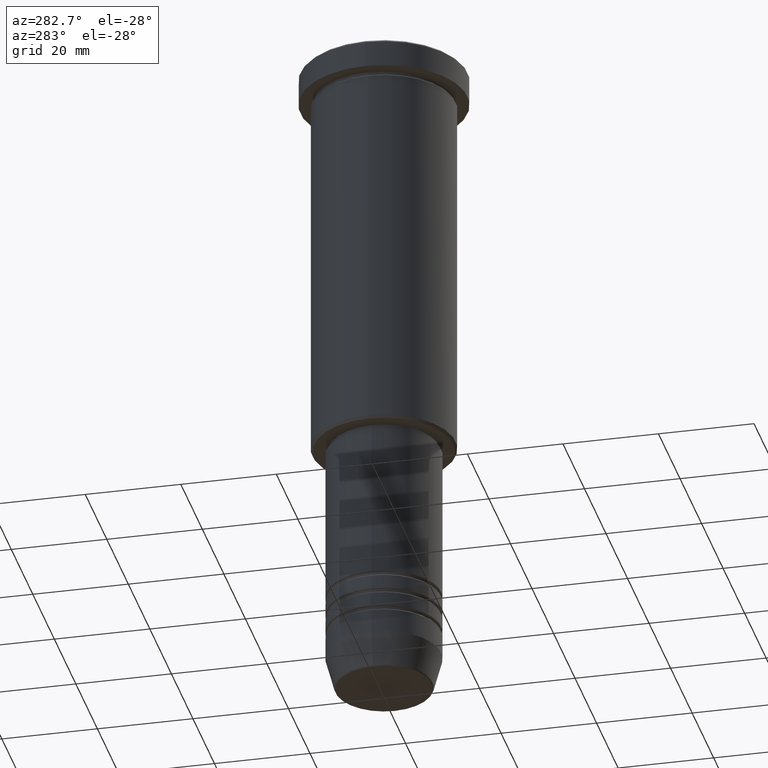
[diagram: clean part render]
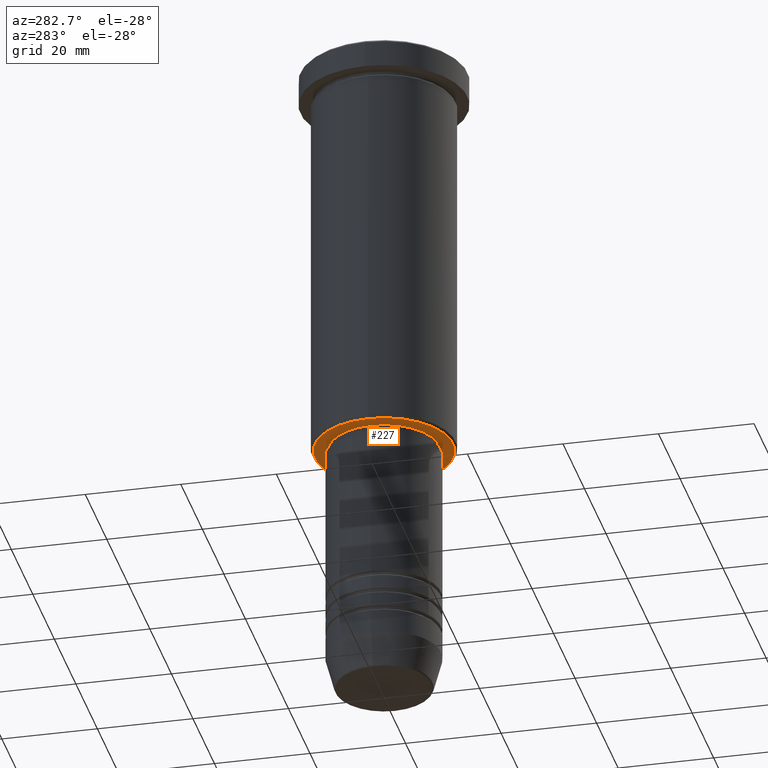
[diagram: same view with one face highlighted and labeled with its STEP entity id]
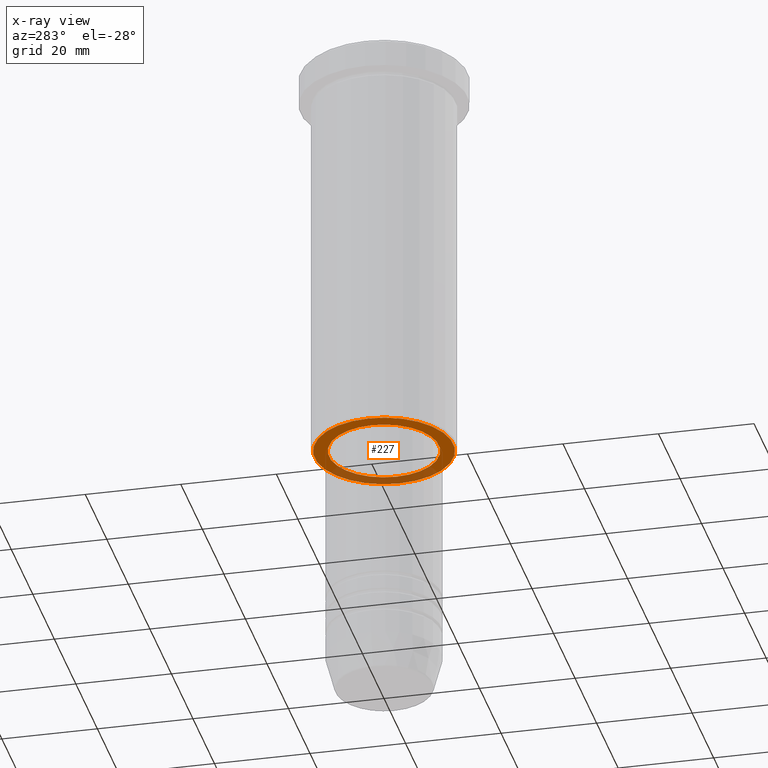
[diagram: x-ray of the same camera — body ghosted, the highlighted face saturated]
A machine part, auxiliary view. The second image highlights one B-rep face of the part: STEP entity #227.
The next image is the same camera in x-ray: the body ghosted, the highlighted face saturated — about 29% of this face is hidden behind the body in this view.
In plain terms, the highlighted planar face has unit normal (0, 0, -1).
Its self-contained STEP definition (entity closure, byte-faithful):
#11 = CARTESIAN_POINT ( 'NONE',  ( -11.50000000000000000, 1.408343819019456176E-15, -86.00000000000000000 ) ) ;
#49 = CIRCLE ( 'NONE', #703, 11.50000000000000000 ) ;
#50 = AXIS2_PLACEMENT_3D ( 'NONE', #515, #614, #523 ) ;
#109 = AXIS2_PLACEMENT_3D ( 'NONE', #387, #655, #941 ) ;
#139 = ORIENTED_EDGE ( 'NONE', *, *, #1145, .T. ) ;
#192 = EDGE_CURVE ( 'NONE', #689, #600, #452, .T. ) ;
#208 = DIRECTION ( 'NONE',  ( 1.000000000000000000, 0.000000000000000000, 0.000000000000000000 ) ) ;
#227 = ADVANCED_FACE ( 'NONE', ( #1005, #378 ), #478, .T. ) ;
#270 = DIRECTION ( 'NONE',  ( 0.000000000000000000, 0.000000000000000000, -1.000000000000000000 ) ) ;
#279 = VERTEX_POINT ( 'NONE', #385 ) ;
#378 = FACE_BOUND ( 'NONE', #1078, .T. ) ;
#385 = CARTESIAN_POINT ( 'NONE',  ( -14.50000000000006750, 1.806354028742349746E-15, -86.00000000000000000 ) ) ;
#387 = CARTESIAN_POINT ( 'NONE',  ( 0.000000000000000000, 0.000000000000000000, -86.00000000000000000 ) ) ;
#432 = VERTEX_POINT ( 'NONE', #711 ) ;
#440 = EDGE_CURVE ( 'NONE', #279, #432, #928, .T. ) ;
#442 = DIRECTION ( 'NONE',  ( -0.000000000000000000, -0.000000000000000000, 1.000000000000000000 ) ) ;
#452 = CIRCLE ( 'NONE', #1119, 11.50000000000000000 ) ;
#457 = DIRECTION ( 'NONE',  ( 1.000000000000000000, 0.000000000000000000, 0.000000000000000000 ) ) ;
#471 = CARTESIAN_POINT ( 'NONE',  ( 0.000000000000000000, 0.000000000000000000, -86.00000000000000000 ) ) ;
#478 = PLANE ( 'NONE',  #985 ) ;
#491 = EDGE_LOOP ( 'NONE', ( #926, #1051 ) ) ;
#503 = ORIENTED_EDGE ( 'NONE', *, *, #192, .T. ) ;
#515 = CARTESIAN_POINT ( 'NONE',  ( 0.000000000000000000, 0.000000000000000000, -86.00000000000000000 ) ) ;
#523 = DIRECTION ( 'NONE',  ( -1.000000000000000000, 0.000000000000000000, 0.000000000000000000 ) ) ;
#600 = VERTEX_POINT ( 'NONE', #11 ) ;
#614 = DIRECTION ( 'NONE',  ( 0.000000000000000000, 0.000000000000000000, -1.000000000000000000 ) ) ;
#634 = CARTESIAN_POINT ( 'NONE',  ( 0.000000000000000000, 0.000000000000000000, -86.00000000000000000 ) ) ;
#653 = EDGE_CURVE ( 'NONE', #432, #279, #899, .T. ) ;
#655 = DIRECTION ( 'NONE',  ( 0.000000000000000000, 0.000000000000000000, -1.000000000000000000 ) ) ;
#689 = VERTEX_POINT ( 'NONE', #1072 ) ;
#703 = AXIS2_PLACEMENT_3D ( 'NONE', #471, #1111, #457 ) ;
#711 = CARTESIAN_POINT ( 'NONE',  ( 14.50000000000006750, 0.000000000000000000, -86.00000000000000000 ) ) ;
#849 = CARTESIAN_POINT ( 'NONE',  ( 0.000000000000000000, 15.00000000000000000, -86.00000000000000000 ) ) ;
#899 = CIRCLE ( 'NONE', #109, 14.50000000000006750 ) ;
#924 = DIRECTION ( 'NONE',  ( -1.000000000000000000, 0.000000000000000000, -0.000000000000000000 ) ) ;
#926 = ORIENTED_EDGE ( 'NONE', *, *, #653, .T. ) ;
#928 = CIRCLE ( 'NONE', #50, 14.50000000000006750 ) ;
#941 = DIRECTION ( 'NONE',  ( -1.000000000000000000, 0.000000000000000000, 0.000000000000000000 ) ) ;
#985 = AXIS2_PLACEMENT_3D ( 'NONE', #849, #270, #924 ) ;
#1005 = FACE_OUTER_BOUND ( 'NONE', #491, .T. ) ;
#1051 = ORIENTED_EDGE ( 'NONE', *, *, #440, .T. ) ;
#1072 = CARTESIAN_POINT ( 'NONE',  ( 11.50000000000000000, 0.000000000000000000, -86.00000000000000000 ) ) ;
#1078 = EDGE_LOOP ( 'NONE', ( #503, #139 ) ) ;
#1111 = DIRECTION ( 'NONE',  ( -0.000000000000000000, -0.000000000000000000, 1.000000000000000000 ) ) ;
#1119 = AXIS2_PLACEMENT_3D ( 'NONE', #634, #442, #208 ) ;
#1145 = EDGE_CURVE ( 'NONE', #600, #689, #49, .T. ) ;